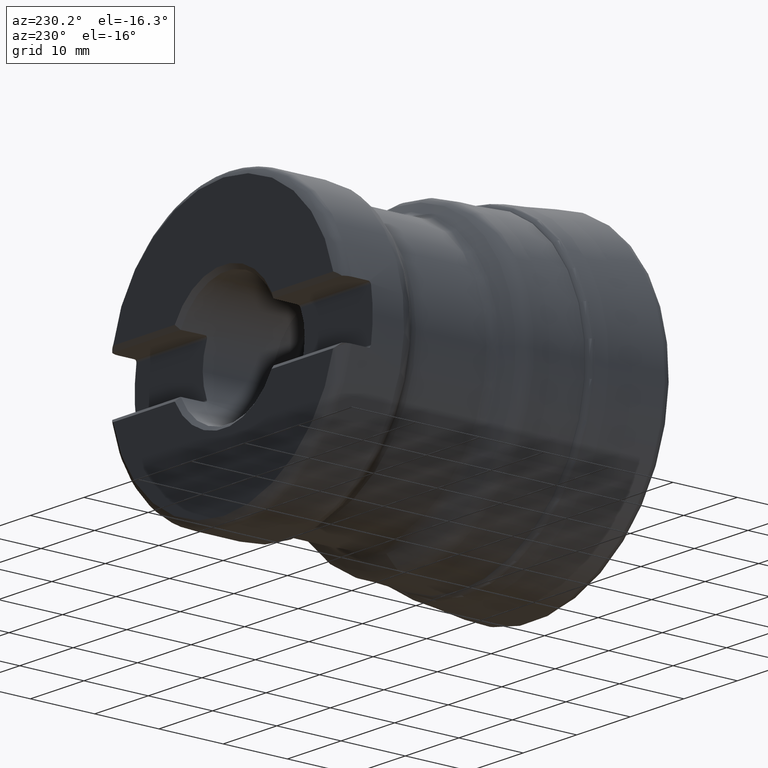
[diagram: clean part render]
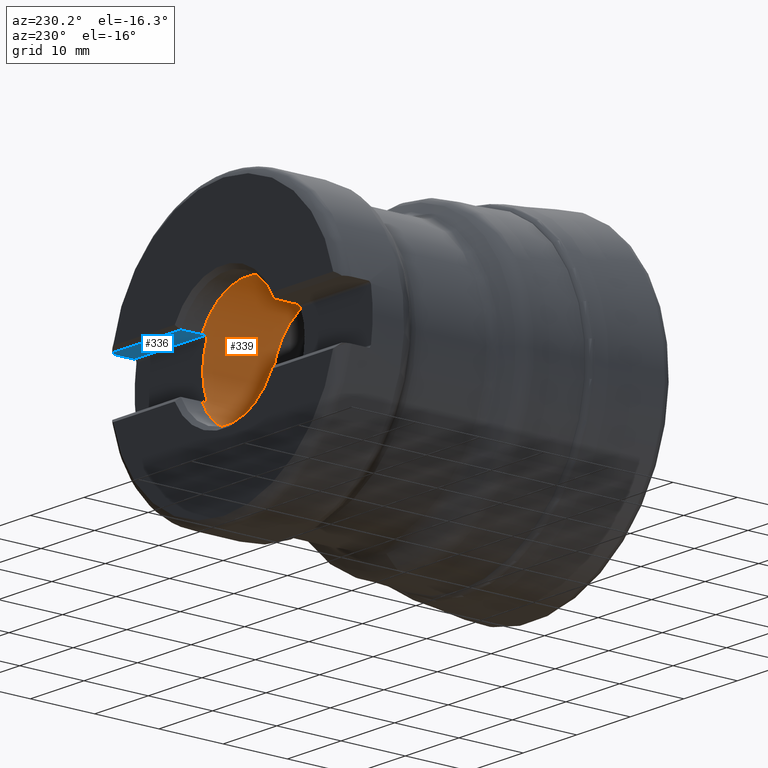
[diagram: same view with the hole feature highlighted: cylindrical wall and planar end face, labeled with their STEP entity ids]
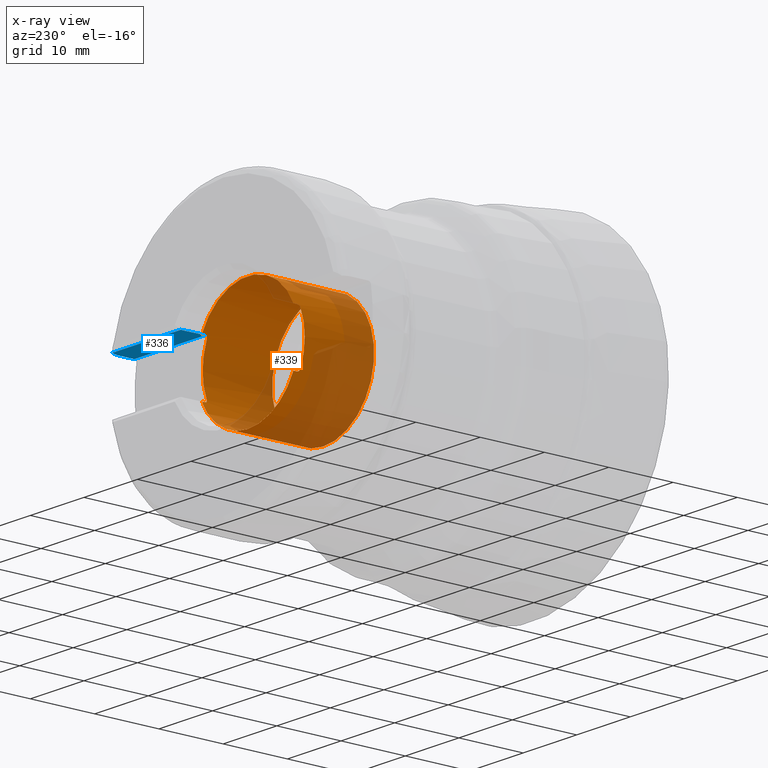
[diagram: x-ray of the same camera — body ghosted, the hole faces saturated]
A machine part, auxiliary view. The highlighted faces form one hole feature of diameter 19.05 mm: the cylindrical wall (entity #339, orange) and its adjacent planar end face (entity #336, blue) — they share a circular edge in the B-rep.
The next image is the same camera in x-ray (body ghosted, the hole faces saturated) — the bore reads through the body.
Wall:
#228=B_SPLINE_CURVE_WITH_KNOTS('',3,(#1720,#1721,#1722,#1723,#1724,#1725,
#1726,#1727,#1728,#1729,#1730,#1731,#1732,#1733,#1734,#1735,#1736,#1737,
#1738),.UNSPECIFIED.,.F.,.F.,(4,3,3,3,3,3,4),(0.,0.0466914832213067,0.253760914020809,
0.483837973279794,0.726357143929705,0.965681344552278,1.),.UNSPECIFIED.);
#229=B_SPLINE_CURVE_WITH_KNOTS('',3,(#1744,#1745,#1746,#1747,#1748,#1749,
#1750,#1751,#1752,#1753,#1754,#1755,#1756,#1757,#1758,#1759),
 .UNSPECIFIED.,.F.,.F.,(4,3,3,3,3,4),(0.,0.206937369334466,0.423509286042871,
0.620977371917134,0.81021090692837,1.),.UNSPECIFIED.);
#230=B_SPLINE_CURVE_WITH_KNOTS('',3,(#1765,#1766,#1767,#1768,#1769,#1770,
#1771,#1772,#1773,#1774,#1775,#1776,#1777,#1778,#1779,#1780,#1781,#1782,
#1783),.UNSPECIFIED.,.F.,.F.,(4,3,3,3,3,3,4),(0.,0.0386594743957461,0.269044895788535,
0.480081106362779,0.673449817538789,0.857853975453466,1.),.UNSPECIFIED.);
#231=B_SPLINE_CURVE_WITH_KNOTS('',3,(#1789,#1790,#1791,#1792,#1793,#1794,
#1795,#1796,#1797,#1798,#1799,#1800,#1801,#1802,#1803,#1804),
 .UNSPECIFIED.,.F.,.F.,(4,3,3,3,3,4),(0.,0.108413031410178,0.323007237368326,
0.558707803919922,0.801825649246487,1.),.UNSPECIFIED.);
#278=LINE('',#1821,#306);
#280=LINE('',#1838,#308);
#282=LINE('',#1855,#310);
#284=LINE('',#1872,#312);
#306=VECTOR('',#1319,1.);
#308=VECTOR('',#1323,1.);
#310=VECTOR('',#1327,1.);
#312=VECTOR('',#1331,1.);
#339=ADVANCED_FACE('',(#417,#418),#402,.F.);
#402=CYLINDRICAL_SURFACE('',#1167,9.525);
#417=FACE_BOUND('',#527,.T.);
#418=FACE_BOUND('',#528,.T.);
#527=EDGE_LOOP('',(#712));
#528=EDGE_LOOP('',(#713,#714,#715,#716,#717,#718,#719,#720,#721,#722,#723,
#724));
#712=ORIENTED_EDGE('',*,*,#1011,.F.);
#713=ORIENTED_EDGE('',*,*,#1012,.T.);
#714=ORIENTED_EDGE('',*,*,#1006,.T.);
#715=ORIENTED_EDGE('',*,*,#991,.F.);
#716=ORIENTED_EDGE('',*,*,#982,.T.);
#717=ORIENTED_EDGE('',*,*,#994,.F.);
#718=ORIENTED_EDGE('',*,*,#998,.T.);
#719=ORIENTED_EDGE('',*,*,#1013,.T.);
#720=ORIENTED_EDGE('',*,*,#1002,.T.);
#721=ORIENTED_EDGE('',*,*,#988,.F.);
#722=ORIENTED_EDGE('',*,*,#990,.T.);
#723=ORIENTED_EDGE('',*,*,#985,.F.);
#724=ORIENTED_EDGE('',*,*,#1010,.T.);
#886=VERTEX_POINT('',#1713);
#887=VERTEX_POINT('',#1715);
#888=VERTEX_POINT('',#1719);
#889=VERTEX_POINT('',#1739);
#890=VERTEX_POINT('',#1743);
#891=VERTEX_POINT('',#1760);
#892=VERTEX_POINT('',#1784);
#893=VERTEX_POINT('',#1788);
#896=VERTEX_POINT('',#1820);
#898=VERTEX_POINT('',#1831);
#901=VERTEX_POINT('',#1848);
#905=VERTEX_POINT('',#1871);
#906=VERTEX_POINT('',#1875);
#982=EDGE_CURVE('',#887,#886,#1080,.T.);
#985=EDGE_CURVE('',#888,#889,#228,.T.);
#988=EDGE_CURVE('',#890,#891,#229,.T.);
#990=EDGE_CURVE('',#890,#889,#1081,.T.);
#991=EDGE_CURVE('',#887,#892,#230,.T.);
#994=EDGE_CURVE('',#893,#886,#231,.T.);
#998=EDGE_CURVE('',#893,#896,#278,.T.);
#1002=EDGE_CURVE('',#898,#891,#280,.T.);
#1006=EDGE_CURVE('',#901,#892,#282,.T.);
#1010=EDGE_CURVE('',#888,#905,#284,.T.);
#1011=EDGE_CURVE('',#906,#906,#1082,.T.);
#1012=EDGE_CURVE('',#905,#901,#1083,.T.);
#1013=EDGE_CURVE('',#896,#898,#1084,.T.);
#1080=CIRCLE('',#1152,9.525);
#1081=CIRCLE('',#1156,9.525);
#1082=CIRCLE('',#1164,9.525);
#1083=CIRCLE('',#1165,9.525);
#1084=CIRCLE('',#1166,9.525);
#1152=AXIS2_PLACEMENT_3D('',#1714,#1295,#1296);
#1156=AXIS2_PLACEMENT_3D('',#1763,#1308,#1309);
#1164=AXIS2_PLACEMENT_3D('',#1874,#1334,#1335);
#1165=AXIS2_PLACEMENT_3D('',#1876,#1336,#1337);
#1166=AXIS2_PLACEMENT_3D('',#1877,#1338,#1339);
#1167=AXIS2_PLACEMENT_3D('',#1878,#1340,#1341);
#1295=DIRECTION('',(0.,1.,0.));
#1296=DIRECTION('',(0.,0.,1.));
#1308=DIRECTION('',(0.,1.,0.));
#1309=DIRECTION('',(0.,0.,1.));
#1319=DIRECTION('',(0.,1.,0.));
#1323=DIRECTION('',(0.,-1.,0.));
#1327=DIRECTION('',(0.,-1.,0.));
#1331=DIRECTION('',(0.,1.,0.));
#1334=DIRECTION('',(0.,1.,0.));
#1335=DIRECTION('',(0.,0.,-1.));
#1336=DIRECTION('',(0.,1.,0.));
#1337=DIRECTION('',(0.,0.,-1.));
#1338=DIRECTION('',(0.,1.,0.));
#1339=DIRECTION('',(0.,0.,-1.));
#1340=DIRECTION('',(0.,-1.,0.));
#1341=DIRECTION('',(0.,0.,-1.));
#1713=CARTESIAN_POINT('',(-8.74499857061166,45.25,3.775));
#1714=CARTESIAN_POINT('',(0.,45.25,0.));
#1715=CARTESIAN_POINT('',(-8.74499857061166,45.25,-3.77500000000001));
#1719=CARTESIAN_POINT('',(8.5612499087458,45.65,-4.17500000000001));
#1720=CARTESIAN_POINT('',(8.5612499087458,45.65,-4.17500000000001));
#1721=CARTESIAN_POINT('',(8.5612499087458,45.6396736248158,-4.17500000000001));
#1722=CARTESIAN_POINT('',(8.56144537883928,45.6293377166004,-4.17459923994739));
#1723=CARTESIAN_POINT('',(8.5618346122326,45.6190496163484,-4.17380079457271));
#1724=CARTESIAN_POINT('',(8.56354187189124,45.5739238413631,-4.17029864495973));
#1725=CARTESIAN_POINT('',(8.56915472133485,45.5288623706117,-4.1587992279519));
#1726=CARTESIAN_POINT('',(8.57783474006711,45.4882070048301,-4.14081829740182));
#1727=CARTESIAN_POINT('',(8.58746440280293,45.443103708057,-4.12087014956779));
#1728=CARTESIAN_POINT('',(8.60116107532835,45.4018346841028,-4.09231403370195));
#1729=CARTESIAN_POINT('',(8.61699604888934,45.3680120258875,-4.05869487562511));
#1730=CARTESIAN_POINT('',(8.63369742776435,45.3323387721724,-4.02323625649086));
#1731=CARTESIAN_POINT('',(8.65330146765013,45.3036524385155,-3.98100721019211));
#1732=CARTESIAN_POINT('',(8.67362944739407,45.2839259811476,-3.93621356246056));
#1733=CARTESIAN_POINT('',(8.69371916418443,45.2644307363278,-3.89194493821605));
#1734=CARTESIAN_POINT('',(8.71510374127138,45.2530544874384,-3.84386899581249));
#1735=CARTESIAN_POINT('',(8.73595305437244,45.2505456445106,-3.79588582965833));
#1736=CARTESIAN_POINT('',(8.73897393948732,45.2501821348726,-3.78893348395286));
#1737=CARTESIAN_POINT('',(8.7419908547179,45.25,-3.78196754203755));
#1738=CARTESIAN_POINT('',(8.74499857061166,45.25,-3.77500000000001));
#1739=CARTESIAN_POINT('',(8.74499857061166,45.25,-3.77500000000001));
#1743=CARTESIAN_POINT('',(8.74499857061166,45.25,3.775));
#1744=CARTESIAN_POINT('',(8.74499857061166,45.25,3.775));
#1745=CARTESIAN_POINT('',(8.72705615190529,45.25,3.81656461614318));
#1746=CARTESIAN_POINT('',(8.70862364477201,45.2565850754851,3.85841738595405));
#1747=CARTESIAN_POINT('',(8.69085331574531,45.2693927758912,3.89803715274737));
#1748=CARTESIAN_POINT('',(8.67223181361914,45.282813946652,3.93955464915791));
#1749=CARTESIAN_POINT('',(8.65391245161984,45.3034034130693,3.97956810047001));
#1750=CARTESIAN_POINT('',(8.63738100061533,45.330098058504,4.01513068905724));
#1751=CARTESIAN_POINT('',(8.62229382929697,45.3544605109498,4.04758633172248));
#1752=CARTESIAN_POINT('',(8.60836386357536,45.3844780066997,4.07705931876258));
#1753=CARTESIAN_POINT('',(8.59684172875103,45.418513637287,4.10121168568572));
#1754=CARTESIAN_POINT('',(8.58580534059199,45.4511144040829,4.12434584444943));
#1755=CARTESIAN_POINT('',(8.57673929736884,45.4882060452831,4.14311039443198));
#1756=CARTESIAN_POINT('',(8.57063561903608,45.5272455852362,4.15569850755683));
#1757=CARTESIAN_POINT('',(8.56452187852568,45.5663494835588,4.16830737273043));
#1758=CARTESIAN_POINT('',(8.5612499087458,45.6084611486916,4.175));
#1759=CARTESIAN_POINT('',(8.5612499087458,45.65,4.175));
#1760=CARTESIAN_POINT('',(8.5612499087458,45.65,4.175));
#1763=CARTESIAN_POINT('',(0.,45.25,0.));
#1765=CARTESIAN_POINT('',(-8.74499857061166,45.25,-3.77500000000001));
#1766=CARTESIAN_POINT('',(-8.74161773161384,45.25,-3.78283190257043));
#1767=CARTESIAN_POINT('',(-8.73822513158495,45.2502301556307,-3.79066209357218));
#1768=CARTESIAN_POINT('',(-8.73482820236741,45.250689353177,-3.79847354540307));
#1769=CARTESIAN_POINT('',(-8.71475838019075,45.2534023956065,-3.84462536051241));
#1770=CARTESIAN_POINT('',(-8.69422372993682,45.2643109342927,-3.89079669083709));
#1771=CARTESIAN_POINT('',(-8.67485314955539,45.2827498272641,-3.93351596331437));
#1772=CARTESIAN_POINT('',(-8.65708541813785,45.2996629652033,-3.97270036278938));
#1773=CARTESIAN_POINT('',(-8.63988011341599,45.3233156854881,-4.00991051466907));
#1774=CARTESIAN_POINT('',(-8.62466260945896,45.3524953671563,-4.04237799729325));
#1775=CARTESIAN_POINT('',(-8.61070943589313,45.3792506855096,-4.07214795310072));
#1776=CARTESIAN_POINT('',(-8.59812510101883,45.4112783314609,-4.09858614795701));
#1777=CARTESIAN_POINT('',(-8.58808726251802,45.4467483665104,-4.1195123705817));
#1778=CARTESIAN_POINT('',(-8.57851751559993,45.4805643378047,-4.13946274679606));
#1779=CARTESIAN_POINT('',(-8.5710600955908,45.5183282752096,-4.15483582076002));
#1780=CARTESIAN_POINT('',(-8.56654084343707,45.5573956245222,-4.16413292027579));
#1781=CARTESIAN_POINT('',(-8.56305958611689,45.5874898726738,-4.17129463523321));
#1782=CARTESIAN_POINT('',(-8.5612499087458,45.6188700612677,-4.17500000000001));
#1783=CARTESIAN_POINT('',(-8.5612499087458,45.65,-4.17500000000001));
#1784=CARTESIAN_POINT('',(-8.5612499087458,45.65,-4.17500000000001));
#1788=CARTESIAN_POINT('',(-8.5612499087458,45.65,4.175));
#1789=CARTESIAN_POINT('',(-8.5612499087458,45.65,4.175));
#1790=CARTESIAN_POINT('',(-8.5612499087458,45.6259936956598,4.175));
#1791=CARTESIAN_POINT('',(-8.56231721657189,45.6018703742219,4.17281338993157));
#1792=CARTESIAN_POINT('',(-8.56440253709578,45.5783417054866,4.16852901904106));
#1793=CARTESIAN_POINT('',(-8.56847608050347,45.5323799205614,4.16015976808072));
#1794=CARTESIAN_POINT('',(-8.57664126790243,45.4875736915034,4.14336818386916));
#1795=CARTESIAN_POINT('',(-8.58767300449023,45.4482191694663,4.1203758770226));
#1796=CARTESIAN_POINT('',(-8.59977961142934,45.4050301642006,4.09514332914589));
#1797=CARTESIAN_POINT('',(-8.61571094335503,45.3668454300065,4.06163691019243));
#1798=CARTESIAN_POINT('',(-8.63335500147313,45.3367773091044,4.02378011558023));
#1799=CARTESIAN_POINT('',(-8.65157338715886,45.305730447902,3.98469105338978));
#1800=CARTESIAN_POINT('',(-8.67218409589316,45.2822348974642,3.93972891098112));
#1801=CARTESIAN_POINT('',(-8.69308833455977,45.2678166150486,3.89305024467202));
#1802=CARTESIAN_POINT('',(-8.71015925998666,45.2560422841187,3.85493127539035));
#1803=CARTESIAN_POINT('',(-8.72780011334712,45.25,3.81484118786626));
#1804=CARTESIAN_POINT('',(-8.74499857061166,45.25,3.775));
#1820=CARTESIAN_POINT('',(-8.5612499087458,46.2,4.175));
#1821=CARTESIAN_POINT('',(-8.5612499087458,50.2,4.175));
#1831=CARTESIAN_POINT('',(8.5612499087458,46.2,4.175));
#1838=CARTESIAN_POINT('',(8.5612499087458,50.2,4.175));
#1848=CARTESIAN_POINT('',(-8.5612499087458,46.2,-4.17500000000001));
#1855=CARTESIAN_POINT('',(-8.5612499087458,50.2,-4.175));
#1871=CARTESIAN_POINT('',(8.5612499087458,46.2,-4.17500000000001));
#1872=CARTESIAN_POINT('',(8.5612499087458,50.2,-4.175));
#1874=CARTESIAN_POINT('',(0.,34.45,0.));
#1875=CARTESIAN_POINT('',(0.,34.45,-9.525));
#1876=CARTESIAN_POINT('',(0.,46.2,0.));
#1877=CARTESIAN_POINT('',(0.,46.2,0.));
#1878=CARTESIAN_POINT('',(0.,50.2,0.));
End face:
#159=PLANE('',#1161);
#201=FACE_OUTER_BOUND('',#524,.T.);
#222=B_SPLINE_CURVE_WITH_KNOTS('',3,(#1630,#1631,#1632,#1633,#1634,#1635,
#1636,#1637,#1638,#1639),.UNSPECIFIED.,.F.,.F.,(4,3,3,4),(0.,0.0284175573541111,
0.54290488286945,1.),.UNSPECIFIED.);
#234=B_SPLINE_CURVE_WITH_KNOTS('',3,(#1823,#1824,#1825,#1826,#1827,#1828,
#1829),.UNSPECIFIED.,.F.,.F.,(4,3,4),(0.,0.385079153036652,1.),
 .UNSPECIFIED.);
#235=B_SPLINE_CURVE_WITH_KNOTS('',3,(#1832,#1833,#1834,#1835),
 .UNSPECIFIED.,.F.,.F.,(4,4),(0.,1.),.UNSPECIFIED.);
#265=LINE('',#1524,#293);
#274=LINE('',#1761,#302);
#279=LINE('',#1837,#307);
#280=LINE('',#1838,#308);
#293=VECTOR('',#1248,1.);
#302=VECTOR('',#1305,1.);
#307=VECTOR('',#1322,1.);
#308=VECTOR('',#1323,1.);
#336=ADVANCED_FACE('',(#201),#159,.T.);
#524=EDGE_LOOP('',(#691,#692,#693,#694,#695,#696,#697));
#691=ORIENTED_EDGE('',*,*,#999,.F.);
#692=ORIENTED_EDGE('',*,*,#1000,.T.);
#693=ORIENTED_EDGE('',*,*,#1001,.T.);
#694=ORIENTED_EDGE('',*,*,#966,.F.);
#695=ORIENTED_EDGE('',*,*,#951,.T.);
#696=ORIENTED_EDGE('',*,*,#989,.T.);
#697=ORIENTED_EDGE('',*,*,#1002,.F.);
#858=VERTEX_POINT('',#1525);
#859=VERTEX_POINT('',#1526);
#873=VERTEX_POINT('',#1640);
#891=VERTEX_POINT('',#1760);
#897=VERTEX_POINT('',#1830);
#898=VERTEX_POINT('',#1831);
#899=VERTEX_POINT('',#1836);
#951=EDGE_CURVE('',#858,#859,#265,.T.);
#966=EDGE_CURVE('',#858,#873,#222,.T.);
#989=EDGE_CURVE('',#859,#891,#274,.T.);
#999=EDGE_CURVE('',#897,#898,#234,.T.);
#1000=EDGE_CURVE('',#897,#899,#235,.T.);
#1001=EDGE_CURVE('',#899,#873,#279,.T.);
#1002=EDGE_CURVE('',#898,#891,#280,.T.);
#1161=AXIS2_PLACEMENT_3D('',#1839,#1324,#1325);
#1248=DIRECTION('',(0.,-1.,0.));
#1305=DIRECTION('',(-1.,0.,0.));
#1322=DIRECTION('',(1.,0.,0.));
#1323=DIRECTION('',(0.,-1.,0.));
#1324=DIRECTION('',(0.,-9.26415875954277E-17,-1.));
#1325=DIRECTION('',(0.,1.,-9.28077059647592E-17));
#1524=CARTESIAN_POINT('',(21.8293380568445,50.2,4.175));
#1525=CARTESIAN_POINT('',(21.8293380568445,48.1999999999985,4.175));
#1526=CARTESIAN_POINT('',(21.8293380568445,45.65,4.175));
#1630=CARTESIAN_POINT('',(21.8293380568445,48.1999999999985,4.175));
#1631=CARTESIAN_POINT('',(21.8293380568445,48.2123192441571,4.175));
#1632=CARTESIAN_POINT('',(21.8292221603621,48.2246390333276,4.175));
#1633=CARTESIAN_POINT('',(21.8289904001373,48.2369560972569,4.175));
#1634=CARTESIAN_POINT('',(21.8248475743311,48.4571295560268,4.175));
#1635=CARTESIAN_POINT('',(21.7825465574143,48.6796007116734,4.175));
#1636=CARTESIAN_POINT('',(21.7057954350224,48.8860051209381,4.175));
#1637=CARTESIAN_POINT('',(21.6375805819741,49.0694532062261,4.175));
#1638=CARTESIAN_POINT('',(21.5407833436247,49.2444833595622,4.175));
#1639=CARTESIAN_POINT('',(21.4219513583644,49.3999999999945,4.175));
#1640=CARTESIAN_POINT('',(21.4219513583644,49.3999999999945,4.175));
#1760=CARTESIAN_POINT('',(8.5612499087458,45.65,4.175));
#1761=CARTESIAN_POINT('',(35.5,45.65,4.175));
#1823=CARTESIAN_POINT('',(8.65391220282645,49.3838659624142,4.175));
#1824=CARTESIAN_POINT('',(8.64203021474974,48.9751854734507,4.175));
#1825=CARTESIAN_POINT('',(8.63014361035592,48.5665051186754,4.175));
#1826=CARTESIAN_POINT('',(8.61825233211779,48.15782489992,4.175));
#1827=CARTESIAN_POINT('',(8.59926352210968,47.5052162507395,4.175));
#1828=CARTESIAN_POINT('',(8.58026279418307,46.8526079482186,4.175));
#1829=CARTESIAN_POINT('',(8.5612499087458,46.2,4.175));
#1830=CARTESIAN_POINT('',(8.65391220282645,49.3838659624142,4.175));
#1831=CARTESIAN_POINT('',(8.5612499087458,46.2,4.175));
#1832=CARTESIAN_POINT('',(8.65391220282645,49.3838659624142,4.175));
#1833=CARTESIAN_POINT('',(8.65988272608483,49.3892433959259,4.175));
#1834=CARTESIAN_POINT('',(8.66585272688416,49.394621409576,4.175));
#1835=CARTESIAN_POINT('',(8.6718222079519,49.3999999999985,4.175));
#1836=CARTESIAN_POINT('',(8.6718222079519,49.3999999999985,4.175));
#1837=CARTESIAN_POINT('',(20.6795428492325,49.3999999999985,4.175));
#1838=CARTESIAN_POINT('',(8.5612499087458,50.2,4.175));
#1839=CARTESIAN_POINT('',(35.5,54.6125526127233,4.175));